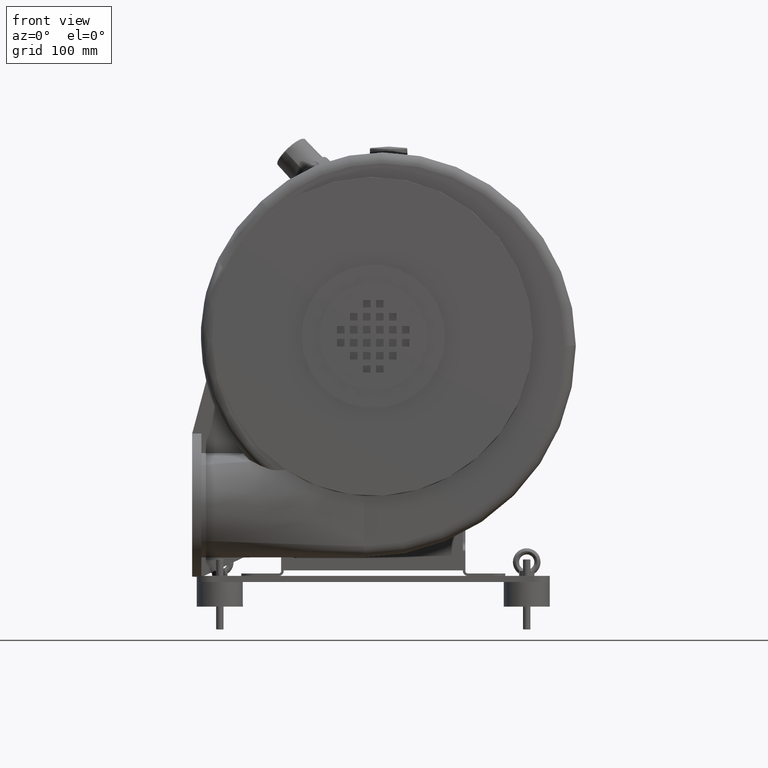
[diagram: clean part render]
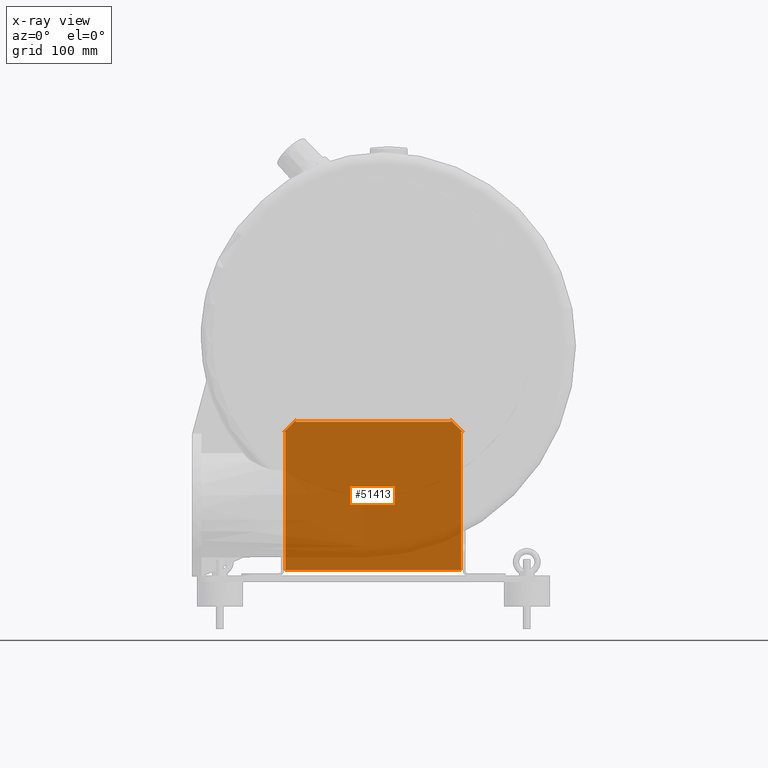
[diagram: x-ray — body ghosted, one internal face saturated and labeled with its STEP entity id]
A machine part, front view, then the same camera in x-ray: the body is ghosted and one INTERNAL B-rep face — a face not visible from any outside direction — is saturated and labeled: STEP entity #51413.
In plain terms, the highlighted planar face has unit normal (0, 1, 0).
Its self-contained STEP definition (entity closure, byte-faithful):
#16951=CARTESIAN_POINT('',(125.99999999999307,224.99999999999429,264.0000000000046));
#16952=VERTEX_POINT('',#16951);
#16953=CARTESIAN_POINT('',(145.99999999999315,224.99999999999397,244.00000000000438));
#16954=VERTEX_POINT('',#16953);
#16955=CARTESIAN_POINT('',(125.99999999999308,224.99999999999429,264.0000000000046));
#16956=DIRECTION('',(0.707106781186545,-1.105345E-014,-0.70710678118655));
#16957=VECTOR('',#16956,28.284271247462112);
#16958=LINE('',#16955,#16957);
#16959=EDGE_CURVE('',#16952,#16954,#16958,.T.);
#16982=CARTESIAN_POINT('',(-146.00000000000682,224.99999999999889,244.00000000000418));
#16983=VERTEX_POINT('',#16982);
#16984=CARTESIAN_POINT('',(-126.00000000000684,224.99999999999852,264.00000000000421));
#16985=VERTEX_POINT('',#16984);
#16986=CARTESIAN_POINT('',(-146.00000000000682,224.99999999999889,244.00000000000421));
#16987=DIRECTION('',(0.707106781186547,-1.306317E-014,0.707106781186548));
#16988=VECTOR('',#16987,28.284271247461891);
#16989=LINE('',#16986,#16988);
#16990=EDGE_CURVE('',#16983,#16985,#16989,.T.);
#17013=CARTESIAN_POINT('',(143.00000000000404,224.99999999999795,19.00000000000837));
#17014=VERTEX_POINT('',#17013);
#17015=CARTESIAN_POINT('',(-142.99999999999596,225.00000000000279,19.000000000008157));
#17016=VERTEX_POINT('',#17015);
#17017=CARTESIAN_POINT('',(143.00000000000406,224.99999999999426,19.000000000004331));
#17018=DIRECTION('',(-1.0,0.0,0.0));
#17019=VECTOR('',#17018,286.0);
#17020=LINE('',#17017,#17019);
#17021=EDGE_CURVE('',#17014,#17016,#17020,.T.);
#51353=CARTESIAN_POINT('',(-6.821210E-012,224.99999999999656,138.61009910680701));
#51354=DIRECTION('',(0.0,1.0,0.0));
#51355=DIRECTION('',(-1.0,0.0,0.0));
#51356=AXIS2_PLACEMENT_3D('',#51353,#51354,#51355);
#51357=PLANE('',#51356);
#51358=CARTESIAN_POINT('',(143.00000000000395,224.99999999999653,244.00000000000836));
#51359=VERTEX_POINT('',#51358);
#51360=CARTESIAN_POINT('',(143.00000000000773,224.99999999999426,19.000000000008384));
#51361=DIRECTION('',(0.0,0.0,1.0));
#51362=VECTOR('',#51361,224.99999999999997);
#51363=LINE('',#51360,#51362);
#51364=EDGE_CURVE('',#17014,#51359,#51363,.T.);
#51365=ORIENTED_EDGE('',*,*,#51364,.T.);
#51366=CARTESIAN_POINT('',(143.00000000000395,224.999999999994,244.00000000000841));
#51367=DIRECTION('',(1.0,0.0,0.0));
#51368=VECTOR('',#51367,2.999999999989171);
#51369=LINE('',#51366,#51368);
#51370=EDGE_CURVE('',#51359,#16954,#51369,.T.);
#51371=ORIENTED_EDGE('',*,*,#51370,.T.);
#51372=ORIENTED_EDGE('',*,*,#16959,.F.);
#51373=CARTESIAN_POINT('',(126.00000000000392,224.9999999999967,261.00000000000864));
#51374=VERTEX_POINT('',#51373);
#51375=CARTESIAN_POINT('',(126.00000000000392,224.99999999999429,264.0000000000046));
#51376=DIRECTION('',(0.0,0.0,-1.0));
#51377=VECTOR('',#51376,2.999999999995964);
#51378=LINE('',#51375,#51377);
#51379=EDGE_CURVE('',#16952,#51374,#51378,.T.);
#51380=ORIENTED_EDGE('',*,*,#51379,.T.);
#51381=CARTESIAN_POINT('',(-125.99999999999604,225.00000000000097,261.00000000000819));
#51382=VERTEX_POINT('',#51381);
#51383=CARTESIAN_POINT('',(126.00000000000392,224.99999999999429,261.00000000001097));
#51384=DIRECTION('',(-1.0,0.0,0.0));
#51385=VECTOR('',#51384,251.99999999999994);
#51386=LINE('',#51383,#51385);
#51387=EDGE_CURVE('',#51374,#51382,#51386,.T.);
#51388=ORIENTED_EDGE('',*,*,#51387,.T.);
#51389=CARTESIAN_POINT('',(-125.99999999999599,224.99999999999855,261.00000000000819));
#51390=DIRECTION('',(0.0,0.0,1.0));
#51391=VECTOR('',#51390,2.999999999996021);
#51392=LINE('',#51389,#51391);
#51393=EDGE_CURVE('',#51382,#16985,#51392,.T.);
#51394=ORIENTED_EDGE('',*,*,#51393,.T.);
#51395=ORIENTED_EDGE('',*,*,#16990,.F.);
#51396=CARTESIAN_POINT('',(-142.99999999999602,225.00000000000136,244.00000000000824));
#51397=VERTEX_POINT('',#51396);
#51398=CARTESIAN_POINT('',(-146.00000000000682,224.99999999999892,244.00000000000824));
#51399=DIRECTION('',(1.0,0.0,0.0));
#51400=VECTOR('',#51399,3.0000000000108);
#51401=LINE('',#51398,#51400);
#51402=EDGE_CURVE('',#16983,#51397,#51401,.T.);
#51403=ORIENTED_EDGE('',*,*,#51402,.T.);
#51404=CARTESIAN_POINT('',(-142.99999999999852,224.99999999999883,244.00000000000824));
#51405=DIRECTION('',(0.0,0.0,-1.0));
#51406=VECTOR('',#51405,225.00000000000009);
#51407=LINE('',#51404,#51406);
#51408=EDGE_CURVE('',#51397,#17016,#51407,.T.);
#51409=ORIENTED_EDGE('',*,*,#51408,.T.);
#51410=ORIENTED_EDGE('',*,*,#17021,.F.);
#51411=EDGE_LOOP('',(#51365,#51371,#51372,#51380,#51388,#51394,#51395,#51403,#51409,#51410));
#51412=FACE_OUTER_BOUND('',#51411,.T.);
#51413=ADVANCED_FACE('',(#51412),#51357,.F.);